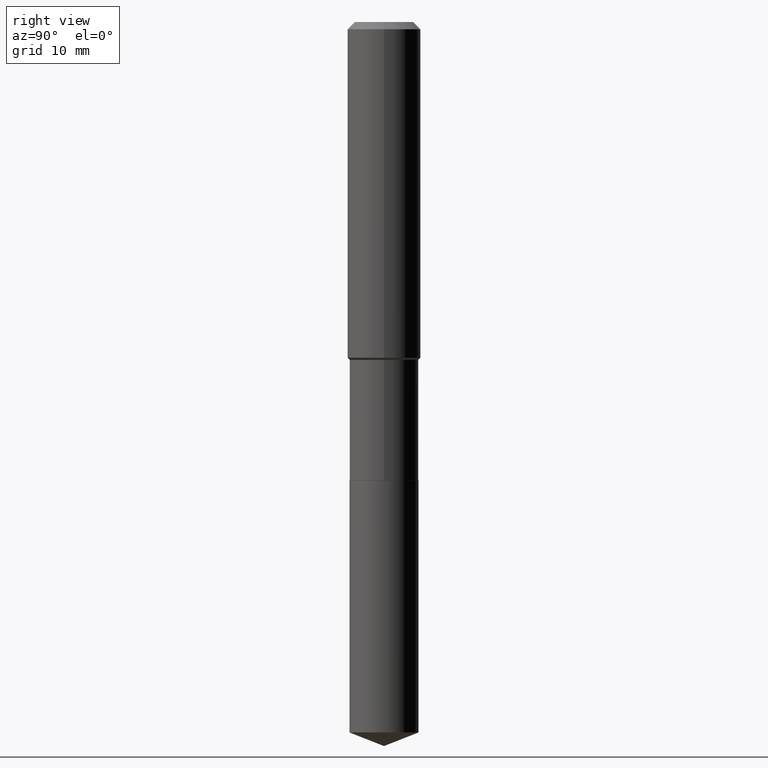
[diagram: clean part render]
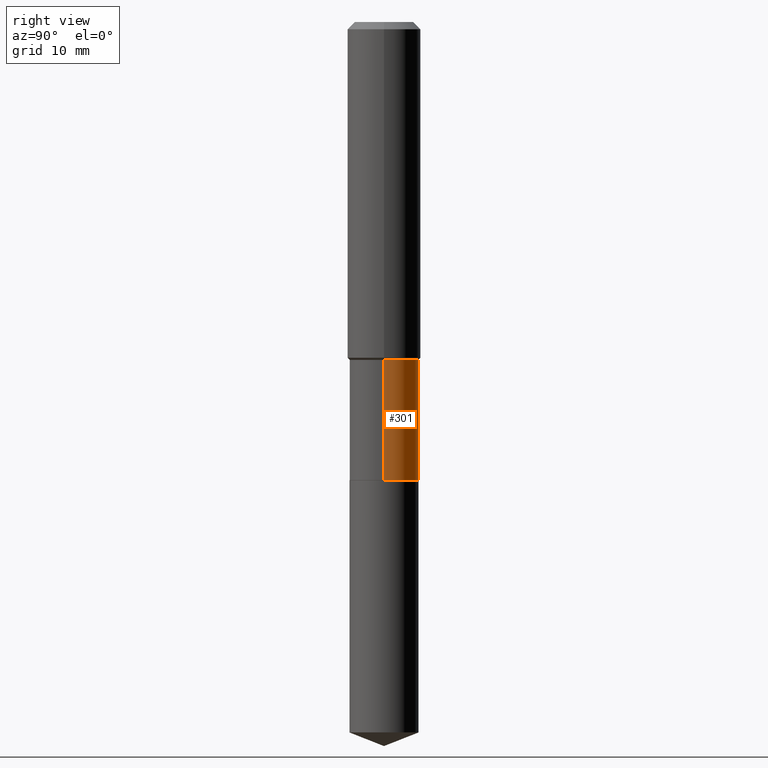
[diagram: same view with one face highlighted and labeled with its STEP entity id]
A machine part, right view. The second image highlights one B-rep face of the part: STEP entity #301.
In plain terms, the highlighted cylindrical surface (edge-blend (fillet) strip) has radius 3.7706 mm, axis along (-0, 0, 1).
Its self-contained STEP definition (entity closure, byte-faithful):
#8 = AXIS2_PLACEMENT_3D ( 'NONE', #341, #314, #172 ) ;
#25 = AXIS2_PLACEMENT_3D ( 'NONE', #226, #363, #444 ) ;
#27 = FACE_OUTER_BOUND ( 'NONE', #437, .T. ) ;
#28 = VECTOR ( 'NONE', #200, 39.37007874015748143 ) ;
#43 = LINE ( 'NONE', #459, #28 ) ;
#59 = ORIENTED_EDGE ( 'NONE', *, *, #431, .F. ) ;
#77 = ORIENTED_EDGE ( 'NONE', *, *, #330, .F. ) ;
#99 = EDGE_CURVE ( 'NONE', #216, #297, #421, .T. ) ;
#109 = CARTESIAN_POINT ( 'NONE',  ( -0.1484500000000000264, -4.914759527851199198E-15, -1.968000000000000194 ) ) ;
#147 = CYLINDRICAL_SURFACE ( 'NONE', #25, 0.1484499999999999431 ) ;
#158 = DIRECTION ( 'NONE',  ( -2.445468806185136877E-29, 3.491481338843145188E-15, 1.000000000000000000 ) ) ;
#172 = DIRECTION ( 'NONE',  ( 1.000000000000000000, -6.982962677686265133E-15, 0.000000000000000000 ) ) ;
#173 = ORIENTED_EDGE ( 'NONE', *, *, #210, .T. ) ;
#180 = VECTOR ( 'NONE', #158, 39.37007874015748143 ) ;
#190 = LINE ( 'NONE', #194, #180 ) ;
#194 = CARTESIAN_POINT ( 'NONE',  ( 0.1484499999999999431, -1.036620809502525896E-15, 7.238684423669065009E-30 ) ) ;
#199 = AXIS2_PLACEMENT_3D ( 'NONE', #255, #409, #323 ) ;
#200 = DIRECTION ( 'NONE',  ( -2.445468806185136877E-29, 3.491481338843145188E-15, 1.000000000000000000 ) ) ;
#210 = EDGE_CURVE ( 'NONE', #297, #392, #43, .T. ) ;
#216 = VERTEX_POINT ( 'NONE', #339 ) ;
#226 = CARTESIAN_POINT ( 'NONE',  ( 0.000000000000000000, 0.000000000000000000, 0.000000000000000000 ) ) ;
#233 = ORIENTED_EDGE ( 'NONE', *, *, #99, .T. ) ;
#255 = CARTESIAN_POINT ( 'NONE',  ( 4.812682610572349594E-29, -6.871235274843310993E-15, -1.968000000000000194 ) ) ;
#279 = CIRCLE ( 'NONE', #8, 0.1484499999999999154 ) ;
#282 = CARTESIAN_POINT ( 'NONE',  ( -0.1484499999999999154, -4.914759527851200776E-15, -1.451500000000000012 ) ) ;
#297 = VERTEX_POINT ( 'NONE', #109 ) ;
#301 = ADVANCED_FACE ( 'NONE', ( #27 ), #147, .T. ) ;
#314 = DIRECTION ( 'NONE',  ( -2.445468806185136597E-29, 3.491481338843145583E-15, 1.000000000000000000 ) ) ;
#323 = DIRECTION ( 'NONE',  ( 1.000000000000000000, -6.982962677686268288E-15, 0.000000000000000000 ) ) ;
#330 = EDGE_CURVE ( 'NONE', #216, #410, #190, .T. ) ;
#339 = CARTESIAN_POINT ( 'NONE',  ( 0.1484499999999999986, -7.907856084345836888E-15, -1.968000000000000194 ) ) ;
#341 = CARTESIAN_POINT ( 'NONE',  ( 3.549597972177726133E-29, -5.067885163330826020E-15, -1.451500000000000012 ) ) ;
#363 = DIRECTION ( 'NONE',  ( -2.445468806185136597E-29, 3.491481338843145583E-15, 1.000000000000000000 ) ) ;
#392 = VERTEX_POINT ( 'NONE', #282 ) ;
#409 = DIRECTION ( 'NONE',  ( -2.445468806185136597E-29, 3.491481338843145583E-15, 1.000000000000000000 ) ) ;
#410 = VERTEX_POINT ( 'NONE', #430 ) ;
#421 = CIRCLE ( 'NONE', #199, 0.1484499999999999986 ) ;
#430 = CARTESIAN_POINT ( 'NONE',  ( 0.1484499999999999154, -6.104505972833351915E-15, -1.451500000000000012 ) ) ;
#431 = EDGE_CURVE ( 'NONE', #410, #392, #279, .T. ) ;
#437 = EDGE_LOOP ( 'NONE', ( #233, #173, #59, #77 ) ) ;
#444 = DIRECTION ( 'NONE',  ( 1.000000000000000000, -6.982962677686266711E-15, 4.876176775795936353E-29 ) ) ;
#459 = CARTESIAN_POINT ( 'NONE',  ( -0.1484499999999999431, 1.054800691235868322E-15, -7.302159141483405952E-30 ) ) ;